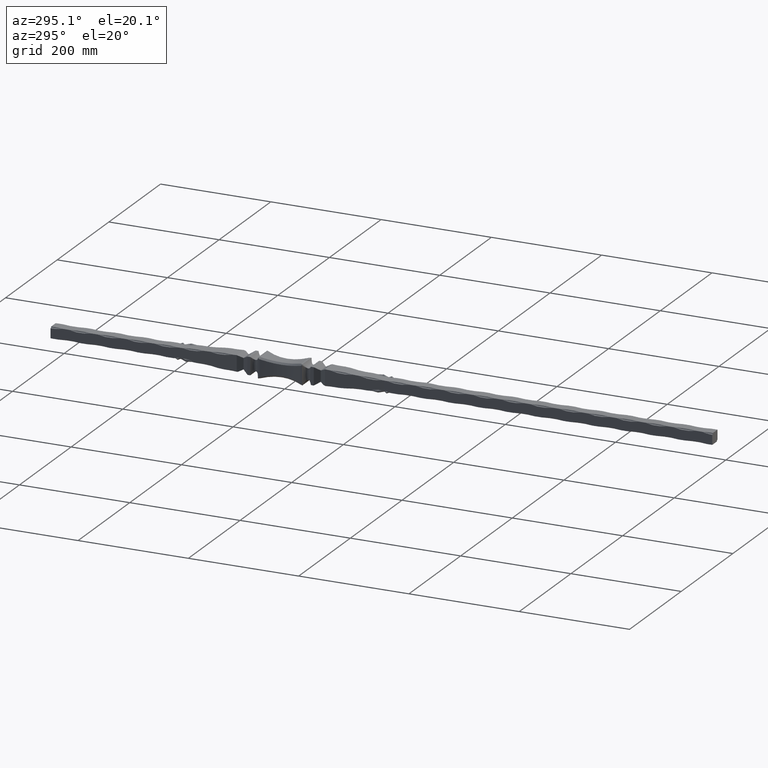
[diagram: clean part render]
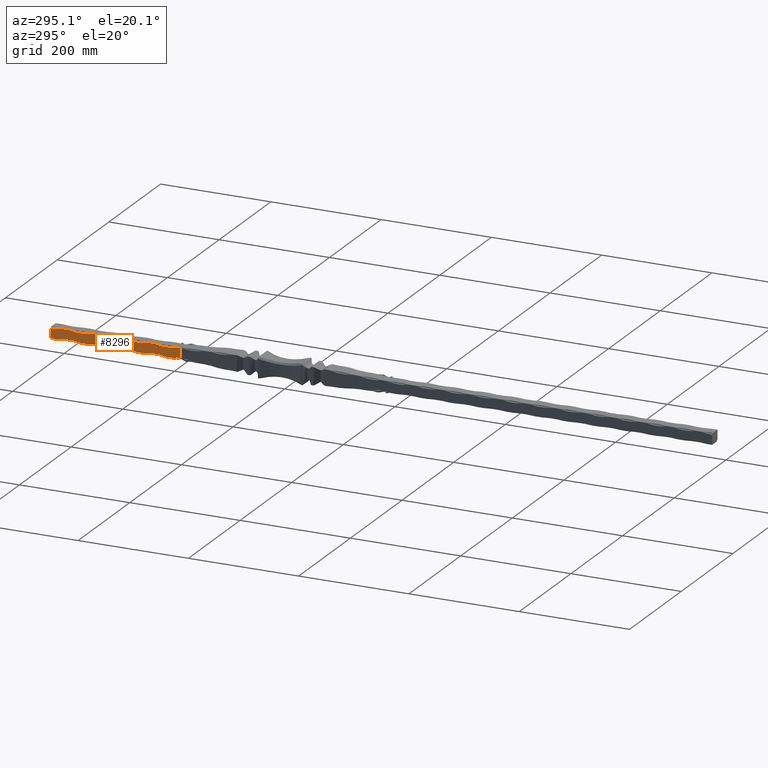
[diagram: same view with one face highlighted and labeled with its STEP entity id]
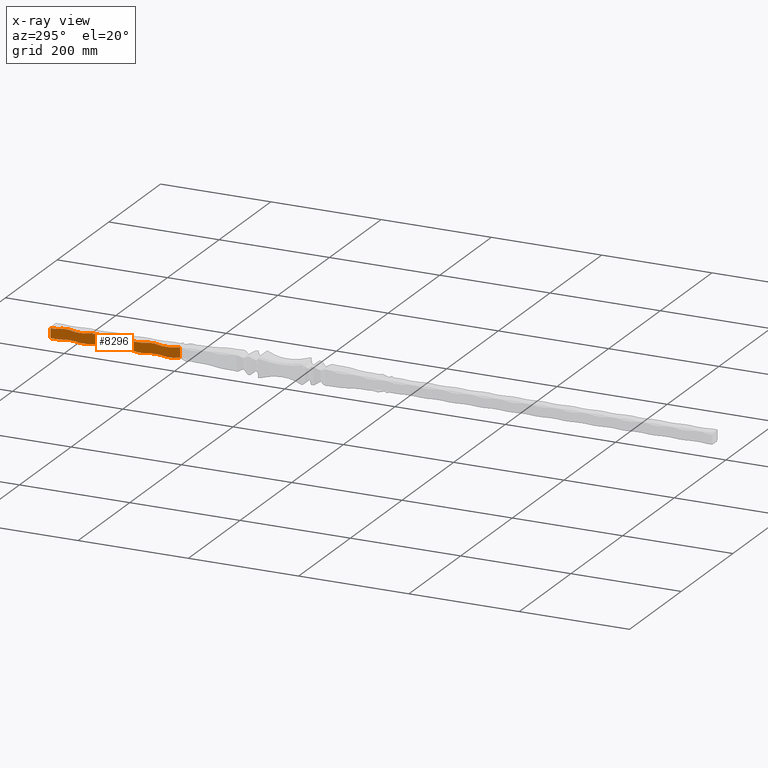
[diagram: x-ray of the same camera — body ghosted, the highlighted face saturated]
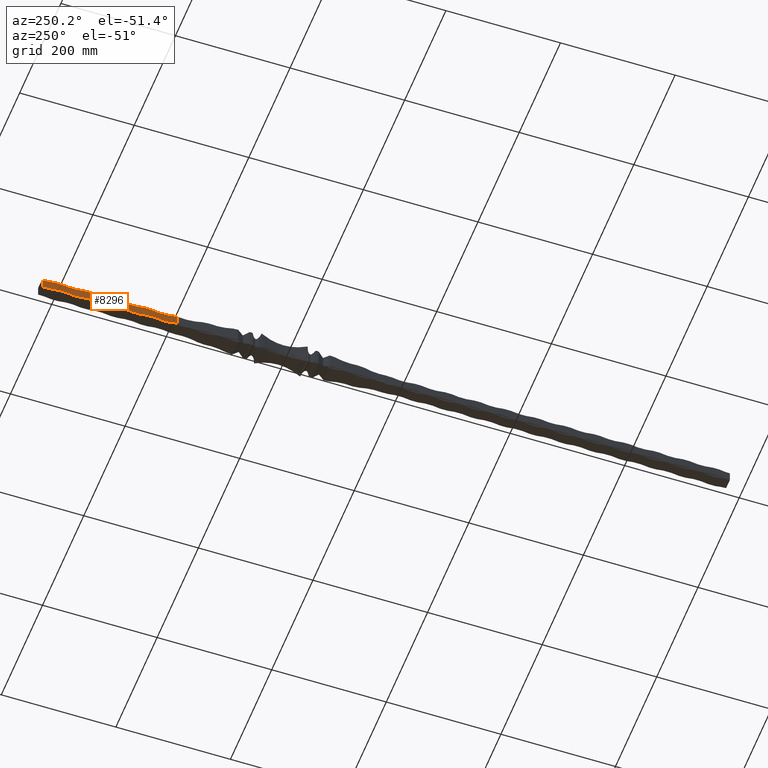
[diagram: same view with one face highlighted and labeled with its STEP entity id]
A machine part, auxiliary view. The second image highlights one B-rep face of the part: STEP entity #8296.
The next image is the same camera in x-ray: the body ghosted, the highlighted face saturated — about 0% of this face is hidden behind the body in this view.
A second angle (auxiliary view) of the same face is appended — the face is thin or edge-on in the first view.
In plain terms, the highlighted planar face has unit normal (1, 0, -0).
Its self-contained STEP definition (entity closure, byte-faithful):
#81 = CARTESIAN_POINT ( 'NONE',  ( -9.999999999999122480, 262.0000000000011937, -9.999999999999994671 ) ) ;
#163 = CARTESIAN_POINT ( 'NONE',  ( -9.999999999999031886, 229.9999999999999716, -88.75000000000046896 ) ) ;
#281 = EDGE_CURVE ( 'NONE', #15252, #7410, #5462, .T. ) ;
#362 = LINE ( 'NONE', #15082, #10746 ) ;
#367 = ORIENTED_EDGE ( 'NONE', *, *, #6669, .F. ) ;
#414 = VECTOR ( 'NONE', #4325, 1000.000000000000000 ) ;
#568 = CARTESIAN_POINT ( 'NONE',  ( -10.00000000000083666, 346.0000000000000000, 10.00000000000000355 ) ) ;
#585 = LINE ( 'NONE', #13523, #7432 ) ;
#672 = CARTESIAN_POINT ( 'NONE',  ( -9.999999999999998224, 420.0000000000000000, 7.524619114466441161 ) ) ;
#1003 = DIRECTION ( 'NONE',  ( 1.000000000000000000, 0.000000000000000000, -8.673617379884035472E-17 ) ) ;
#1005 = EDGE_CURVE ( 'NONE', #4216, #13858, #4472, .T. ) ;
#1160 = EDGE_CURVE ( 'NONE', #10032, #5842, #5446, .T. ) ;
#1235 = DIRECTION ( 'NONE',  ( -0.000000000000000000, -1.000000000000000000, -0.000000000000000000 ) ) ;
#1264 = ORIENTED_EDGE ( 'NONE', *, *, #14823, .T. ) ;
#1476 = CARTESIAN_POINT ( 'NONE',  ( -9.999999999999220179, 314.0000000000010800, -9.999999999999994671 ) ) ;
#1512 = ORIENTED_EDGE ( 'NONE', *, *, #7490, .T. ) ;
#1617 = VERTEX_POINT ( 'NONE', #7790 ) ;
#1724 = DIRECTION ( 'NONE',  ( -8.540177112501188607E-17, 0.000000000000000000, -1.000000000000000000 ) ) ;
#1809 = CIRCLE ( 'NONE', #6003, 81.25000000000014211 ) ;
#1989 = DIRECTION ( 'NONE',  ( 1.000000000000000000, 0.000000000000000000, -8.673617379884035472E-17 ) ) ;
#2013 = AXIS2_PLACEMENT_3D ( 'NONE', #13413, #8278, #14439 ) ;
#2069 = VERTEX_POINT ( 'NONE', #81 ) ;
#2109 = AXIS2_PLACEMENT_3D ( 'NONE', #11079, #2917, #9613 ) ;
#2141 = CARTESIAN_POINT ( 'NONE',  ( -9.999999999999324984, 386.0000000000000000, -88.75000000000038369 ) ) ;
#2218 = CARTESIAN_POINT ( 'NONE',  ( -10.00000000000082956, 366.0000000000000000, 88.75000000000014211 ) ) ;
#2368 = CARTESIAN_POINT ( 'NONE',  ( -10.00000000000000000, 868.2842712474619020, -9.999999999999996447 ) ) ;
#2369 = ORIENTED_EDGE ( 'NONE', *, *, #281, .T. ) ;
#2415 = EDGE_CURVE ( 'NONE', #9300, #3569, #4354, .T. ) ;
#2531 = DIRECTION ( 'NONE',  ( 1.000000000000000000, 0.000000000000000000, -8.673617379884035472E-17 ) ) ;
#2540 = DIRECTION ( 'NONE',  ( -8.673617379884035472E-17, 0.000000000000000000, -1.000000000000000000 ) ) ;
#2557 = CIRCLE ( 'NONE', #15746, 81.25000000000014211 ) ;
#2617 = DIRECTION ( 'NONE',  ( -8.540177112501187375E-17, 0.000000000000000000, -1.000000000000000000 ) ) ;
#2686 = VECTOR ( 'NONE', #12412, 1000.000000000000000 ) ;
#2853 = ORIENTED_EDGE ( 'NONE', *, *, #7447, .T. ) ;
#2880 = CIRCLE ( 'NONE', #9714, 81.25000000000014211 ) ;
#2917 = DIRECTION ( 'NONE',  ( 1.000000000000000000, 0.000000000000000000, -8.673617379884035472E-17 ) ) ;
#3130 = VERTEX_POINT ( 'NONE', #568 ) ;
#3418 = EDGE_CURVE ( 'NONE', #13858, #3825, #5620, .T. ) ;
#3423 = EDGE_CURVE ( 'NONE', #3825, #11983, #15227, .T. ) ;
#3455 = CIRCLE ( 'NONE', #4733, 81.25000000000015632 ) ;
#3470 = EDGE_CURVE ( 'NONE', #3569, #1617, #362, .T. ) ;
#3501 = CARTESIAN_POINT ( 'NONE',  ( -9.999999999999220179, 354.0000000000000568, -10.00000000000024869 ) ) ;
#3569 = VERTEX_POINT ( 'NONE', #1476 ) ;
#3599 = LINE ( 'NONE', #12306, #12841 ) ;
#3682 = CARTESIAN_POINT ( 'NONE',  ( -9.999999999999422684, 438.0000000000000000, -88.75000000000034106 ) ) ;
#3698 = EDGE_LOOP ( 'NONE', ( #9921, #4031, #9742, #5965, #13446, #13915, #9303, #12602, #11569, #7420, #367, #10049, #7312, #11643, #14819, #13842, #15376, #7081, #2853, #2369, #1512, #1264, #13984 ) ) ;
#3825 = VERTEX_POINT ( 'NONE', #11187 ) ;
#3916 = CARTESIAN_POINT ( 'NONE',  ( -10.00000000000000000, 420.0000000000000000, -9.518929705575917666 ) ) ;
#4031 = ORIENTED_EDGE ( 'NONE', *, *, #1160, .T. ) ;
#4076 = CARTESIAN_POINT ( 'NONE',  ( -9.999999999999998224, 185.0000000000000000, 10.00000000000000355 ) ) ;
#4086 = EDGE_CURVE ( 'NONE', #10032, #10499, #11324, .T. ) ;
#4216 = VERTEX_POINT ( 'NONE', #3916 ) ;
#4221 = VECTOR ( 'NONE', #11100, 1000.000000000000000 ) ;
#4325 = DIRECTION ( 'NONE',  ( -0.000000000000000000, -1.000000000000000000, -0.000000000000000000 ) ) ;
#4346 = CIRCLE ( 'NONE', #12333, 81.25000000000014211 ) ;
#4354 = CIRCLE ( 'NONE', #2109, 81.25000000000015632 ) ;
#4442 = CARTESIAN_POINT ( 'NONE',  ( -9.999999999999024780, 250.0000000000000000, -10.00000000000030731 ) ) ;
#4472 = CIRCLE ( 'NONE', #12145, 81.25000000000014211 ) ;
#4562 = DIRECTION ( 'NONE',  ( 1.000000000000000000, 0.000000000000000000, -8.673617379884035472E-17 ) ) ;
#4589 = VERTEX_POINT ( 'NONE', #13139 ) ;
#4620 = DIRECTION ( 'NONE',  ( -0.000000000000000000, -1.000000000000000000, -0.000000000000000000 ) ) ;
#4627 = DIRECTION ( 'NONE',  ( 1.000000000000000000, 0.000000000000000000, -8.673617379884035472E-17 ) ) ;
#4733 = AXIS2_PLACEMENT_3D ( 'NONE', #12161, #4627, #13421 ) ;
#4763 = DIRECTION ( 'NONE',  ( -8.540177112501188607E-17, 0.000000000000000000, -1.000000000000000000 ) ) ;
#4781 = CARTESIAN_POINT ( 'NONE',  ( -10.00000000000107114, 262.0000000000000000, 88.75000000000014211 ) ) ;
#4870 = CARTESIAN_POINT ( 'NONE',  ( -9.999999999999998224, 868.2842712474619020, 10.00000000000000355 ) ) ;
#4999 = CIRCLE ( 'NONE', #15191, 81.25000000000015632 ) ;
#5010 = EDGE_CURVE ( 'NONE', #14108, #10499, #13911, .T. ) ;
#5202 = CARTESIAN_POINT ( 'NONE',  ( -10.00000000000119726, 189.9999999999999432, 10.00000000000000355 ) ) ;
#5266 = EDGE_CURVE ( 'NONE', #3130, #14441, #13714, .T. ) ;
#5418 = CARTESIAN_POINT ( 'NONE',  ( -10.00000000000000178, 185.0000000000000568, -7.802100089008206396 ) ) ;
#5446 = CIRCLE ( 'NONE', #2013, 81.25000000000014211 ) ;
#5462 = CIRCLE ( 'NONE', #13072, 81.25000000000015632 ) ;
#5620 = LINE ( 'NONE', #9710, #8221 ) ;
#5680 = AXIS2_PLACEMENT_3D ( 'NONE', #8684, #10098, #2540 ) ;
#5842 = VERTEX_POINT ( 'NONE', #9287 ) ;
#5942 = DIRECTION ( 'NONE',  ( -8.540177112501188607E-17, 0.000000000000000000, -1.000000000000000000 ) ) ;
#5965 = ORIENTED_EDGE ( 'NONE', *, *, #7750, .T. ) ;
#5992 = CARTESIAN_POINT ( 'NONE',  ( -10.00000000000000000, 185.0000000000000000, -9.999999999999996447 ) ) ;
#6003 = AXIS2_PLACEMENT_3D ( 'NONE', #4781, #1003, #5942 ) ;
#6185 = EDGE_CURVE ( 'NONE', #16094, #14441, #2880, .T. ) ;
#6206 = DIRECTION ( 'NONE',  ( -0.000000000000000000, -1.000000000000000000, -0.000000000000000000 ) ) ;
#6224 = DIRECTION ( 'NONE',  ( -8.540177112501188607E-17, 0.000000000000000000, -1.000000000000000000 ) ) ;
#6293 = VERTEX_POINT ( 'NONE', #13601 ) ;
#6361 = DIRECTION ( 'NONE',  ( 1.000000000000000000, 0.000000000000000000, -8.673617379884035472E-17 ) ) ;
#6398 = LINE ( 'NONE', #2368, #16004 ) ;
#6669 = EDGE_CURVE ( 'NONE', #4216, #15759, #3599, .T. ) ;
#6944 = CARTESIAN_POINT ( 'NONE',  ( -9.999999999999129585, 282.0000000000000000, -88.75000000000044054 ) ) ;
#7081 = ORIENTED_EDGE ( 'NONE', *, *, #15712, .T. ) ;
#7312 = ORIENTED_EDGE ( 'NONE', *, *, #3418, .T. ) ;
#7410 = VERTEX_POINT ( 'NONE', #12192 ) ;
#7420 = ORIENTED_EDGE ( 'NONE', *, *, #10087, .T. ) ;
#7432 = VECTOR ( 'NONE', #4620, 1000.000000000000000 ) ;
#7445 = DIRECTION ( 'NONE',  ( -0.000000000000000000, -1.000000000000000000, -0.000000000000000000 ) ) ;
#7447 = EDGE_CURVE ( 'NONE', #2069, #15252, #12628, .T. ) ;
#7490 = EDGE_CURVE ( 'NONE', #7410, #14707, #11262, .T. ) ;
#7526 = VECTOR ( 'NONE', #9807, 1000.000000000000000 ) ;
#7529 = FACE_OUTER_BOUND ( 'NONE', #3698, .T. ) ;
#7750 = EDGE_CURVE ( 'NONE', #6293, #8982, #1809, .T. ) ;
#7790 = CARTESIAN_POINT ( 'NONE',  ( -9.999999999999122480, 302.0000000000000568, -10.00000000000027711 ) ) ;
#7874 = CARTESIAN_POINT ( 'NONE',  ( -9.999999999999317879, 366.0000000000009095, -9.999999999999994671 ) ) ;
#7939 = VECTOR ( 'NONE', #11284, 1000.000000000000000 ) ;
#7941 = CARTESIAN_POINT ( 'NONE',  ( -10.00000000000107825, 282.0000000000000000, 10.00000000000000888 ) ) ;
#7944 = VERTEX_POINT ( 'NONE', #12689 ) ;
#8050 = CARTESIAN_POINT ( 'NONE',  ( -9.999999999999998224, 868.2842712474619020, 10.00000000000000355 ) ) ;
#8216 = CARTESIAN_POINT ( 'NONE',  ( -9.999999999999998224, 868.2842712474619020, 10.00000000000000355 ) ) ;
#8221 = VECTOR ( 'NONE', #13574, 1000.000000000000000 ) ;
#8269 = LINE ( 'NONE', #8050, #414 ) ;
#8278 = DIRECTION ( 'NONE',  ( 1.000000000000000000, 0.000000000000000000, -8.673617379884035472E-17 ) ) ;
#8296 = ADVANCED_FACE ( 'NONE', ( #7529 ), #14944, .F. ) ;
#8536 = DIRECTION ( 'NONE',  ( 8.673617379884035472E-17, -0.000000000000000000, 1.000000000000000000 ) ) ;
#8684 = CARTESIAN_POINT ( 'NONE',  ( -10.00000000000000000, 868.2842712474619020, -9.999999999999996447 ) ) ;
#8884 = CARTESIAN_POINT ( 'NONE',  ( -10.00000000000000000, 868.2842712474619020, -9.999999999999996447 ) ) ;
#8936 = DIRECTION ( 'NONE',  ( 1.000000000000000000, 0.000000000000000000, -8.673617379884035472E-17 ) ) ;
#8982 = VERTEX_POINT ( 'NONE', #7941 ) ;
#9287 = CARTESIAN_POINT ( 'NONE',  ( -10.00000000000119726, 229.9999999999999716, 10.00000000000000888 ) ) ;
#9300 = VERTEX_POINT ( 'NONE', #3501 ) ;
#9303 = ORIENTED_EDGE ( 'NONE', *, *, #5266, .F. ) ;
#9310 = CARTESIAN_POINT ( 'NONE',  ( -10.00000000000071054, 418.0000000000000000, 88.75000000000014211 ) ) ;
#9461 = CARTESIAN_POINT ( 'NONE',  ( -9.999999999999998224, 868.2842712474619020, 10.00000000000000355 ) ) ;
#9465 = DIRECTION ( 'NONE',  ( 1.000000000000000000, 0.000000000000000000, -8.673617379884035472E-17 ) ) ;
#9473 = CARTESIAN_POINT ( 'NONE',  ( -9.999999999999415579, 418.0000000000000000, -10.00000000000018829 ) ) ;
#9613 = DIRECTION ( 'NONE',  ( -8.540177112501187375E-17, 0.000000000000000000, -1.000000000000000000 ) ) ;
#9615 = EDGE_CURVE ( 'NONE', #3130, #7944, #4346, .T. ) ;
#9710 = CARTESIAN_POINT ( 'NONE',  ( -10.00000000000000000, 868.2842712474619020, -9.999999999999996447 ) ) ;
#9714 = AXIS2_PLACEMENT_3D ( 'NONE', #12790, #6361, #14038 ) ;
#9742 = ORIENTED_EDGE ( 'NONE', *, *, #13001, .F. ) ;
#9807 = DIRECTION ( 'NONE',  ( -0.000000000000000000, -1.000000000000000000, -0.000000000000000000 ) ) ;
#9921 = ORIENTED_EDGE ( 'NONE', *, *, #4086, .F. ) ;
#10032 = VERTEX_POINT ( 'NONE', #5202 ) ;
#10049 = ORIENTED_EDGE ( 'NONE', *, *, #1005, .T. ) ;
#10087 = EDGE_CURVE ( 'NONE', #4589, #15759, #2557, .T. ) ;
#10098 = DIRECTION ( 'NONE',  ( 1.000000000000000000, 0.000000000000000000, -8.673617379884035472E-17 ) ) ;
#10499 = VERTEX_POINT ( 'NONE', #4076 ) ;
#10746 = VECTOR ( 'NONE', #6206, 1000.000000000000000 ) ;
#11079 = CARTESIAN_POINT ( 'NONE',  ( -9.999999999999227285, 334.0000000000000000, -88.75000000000041211 ) ) ;
#11100 = DIRECTION ( 'NONE',  ( -0.000000000000000000, -1.000000000000000000, -0.000000000000000000 ) ) ;
#11187 = CARTESIAN_POINT ( 'NONE',  ( -9.999999999999317879, 406.0000000000000000, -10.00000000000021672 ) ) ;
#11262 = LINE ( 'NONE', #8884, #7939 ) ;
#11284 = DIRECTION ( 'NONE',  ( -0.000000000000000000, -1.000000000000000000, -0.000000000000000000 ) ) ;
#11324 = LINE ( 'NONE', #8216, #4221 ) ;
#11569 = ORIENTED_EDGE ( 'NONE', *, *, #13460, .F. ) ;
#11643 = ORIENTED_EDGE ( 'NONE', *, *, #3423, .T. ) ;
#11983 = VERTEX_POINT ( 'NONE', #7874 ) ;
#11987 = EDGE_CURVE ( 'NONE', #16094, #8982, #8269, .T. ) ;
#12001 = DIRECTION ( 'NONE',  ( -0.000000000000000000, -1.000000000000000000, -0.000000000000000000 ) ) ;
#12123 = CARTESIAN_POINT ( 'NONE',  ( -10.00000000000095746, 334.0000000000000000, 10.00000000000000888 ) ) ;
#12145 = AXIS2_PLACEMENT_3D ( 'NONE', #3682, #2531, #6224 ) ;
#12161 = CARTESIAN_POINT ( 'NONE',  ( -9.999999999998934186, 178.0000000000000568, -88.75000000000049738 ) ) ;
#12192 = CARTESIAN_POINT ( 'NONE',  ( -9.999999999999024780, 210.0000000000012221, -9.999999999999994671 ) ) ;
#12300 = DIRECTION ( 'NONE',  ( 1.000000000000000000, 0.000000000000000000, -8.673617379884035472E-17 ) ) ;
#12306 = CARTESIAN_POINT ( 'NONE',  ( -10.00000000000000000, 420.0000000000000000, -9.999999999999996447 ) ) ;
#12333 = AXIS2_PLACEMENT_3D ( 'NONE', #2218, #12300, #4763 ) ;
#12412 = DIRECTION ( 'NONE',  ( 8.673617379884035472E-17, 0.000000000000000000, 1.000000000000000000 ) ) ;
#12602 = ORIENTED_EDGE ( 'NONE', *, *, #9615, .T. ) ;
#12628 = LINE ( 'NONE', #14762, #7526 ) ;
#12689 = CARTESIAN_POINT ( 'NONE',  ( -10.00000000000083666, 386.0000000000000000, 10.00000000000000888 ) ) ;
#12790 = CARTESIAN_POINT ( 'NONE',  ( -10.00000000000095035, 314.0000000000000000, 88.75000000000014211 ) ) ;
#12841 = VECTOR ( 'NONE', #8536, 1000.000000000000000 ) ;
#12855 = CARTESIAN_POINT ( 'NONE',  ( -10.00000000000095746, 294.0000000000000000, 10.00000000000000355 ) ) ;
#12925 = CARTESIAN_POINT ( 'NONE',  ( -9.999999999998927080, 198.0000000000000568, -10.00000000000033928 ) ) ;
#12926 = VECTOR ( 'NONE', #12001, 1000.000000000000000 ) ;
#13001 = EDGE_CURVE ( 'NONE', #6293, #5842, #585, .T. ) ;
#13072 = AXIS2_PLACEMENT_3D ( 'NONE', #163, #8936, #2617 ) ;
#13139 = CARTESIAN_POINT ( 'NONE',  ( -10.00000000000071587, 397.9999999999999432, 10.00000000000000355 ) ) ;
#13357 = DIRECTION ( 'NONE',  ( -8.540177112501187375E-17, 0.000000000000000000, -1.000000000000000000 ) ) ;
#13413 = CARTESIAN_POINT ( 'NONE',  ( -10.00000000000119016, 209.9999999999999716, 88.75000000000014211 ) ) ;
#13421 = DIRECTION ( 'NONE',  ( -8.540177112501187375E-17, 0.000000000000000000, -1.000000000000000000 ) ) ;
#13446 = ORIENTED_EDGE ( 'NONE', *, *, #11987, .F. ) ;
#13460 = EDGE_CURVE ( 'NONE', #4589, #7944, #15641, .T. ) ;
#13523 = CARTESIAN_POINT ( 'NONE',  ( -9.999999999999998224, 868.2842712474619020, 10.00000000000000355 ) ) ;
#13574 = DIRECTION ( 'NONE',  ( -0.000000000000000000, -1.000000000000000000, -0.000000000000000000 ) ) ;
#13599 = AXIS2_PLACEMENT_3D ( 'NONE', #2141, #4562, #13357 ) ;
#13601 = CARTESIAN_POINT ( 'NONE',  ( -10.00000000000107825, 242.0000000000000000, 10.00000000000000355 ) ) ;
#13714 = LINE ( 'NONE', #9461, #12926 ) ;
#13842 = ORIENTED_EDGE ( 'NONE', *, *, #2415, .T. ) ;
#13858 = VERTEX_POINT ( 'NONE', #9473 ) ;
#13911 = LINE ( 'NONE', #5992, #2686 ) ;
#13915 = ORIENTED_EDGE ( 'NONE', *, *, #6185, .T. ) ;
#13984 = ORIENTED_EDGE ( 'NONE', *, *, #5010, .T. ) ;
#14038 = DIRECTION ( 'NONE',  ( -8.540177112501188607E-17, 0.000000000000000000, -1.000000000000000000 ) ) ;
#14108 = VERTEX_POINT ( 'NONE', #5418 ) ;
#14439 = DIRECTION ( 'NONE',  ( -8.540177112501188607E-17, 0.000000000000000000, -1.000000000000000000 ) ) ;
#14441 = VERTEX_POINT ( 'NONE', #12123 ) ;
#14460 = DIRECTION ( 'NONE',  ( -8.540177112501187375E-17, 0.000000000000000000, -1.000000000000000000 ) ) ;
#14472 = VECTOR ( 'NONE', #1235, 1000.000000000000000 ) ;
#14476 = EDGE_CURVE ( 'NONE', #11983, #9300, #6398, .T. ) ;
#14707 = VERTEX_POINT ( 'NONE', #12925 ) ;
#14762 = CARTESIAN_POINT ( 'NONE',  ( -10.00000000000000000, 868.2842712474619020, -9.999999999999996447 ) ) ;
#14819 = ORIENTED_EDGE ( 'NONE', *, *, #14476, .T. ) ;
#14823 = EDGE_CURVE ( 'NONE', #14707, #14108, #3455, .T. ) ;
#14944 = PLANE ( 'NONE',  #5680 ) ;
#15082 = CARTESIAN_POINT ( 'NONE',  ( -10.00000000000000000, 868.2842712474619020, -9.999999999999996447 ) ) ;
#15191 = AXIS2_PLACEMENT_3D ( 'NONE', #6944, #1989, #14460 ) ;
#15227 = CIRCLE ( 'NONE', #13599, 81.25000000000015632 ) ;
#15252 = VERTEX_POINT ( 'NONE', #4442 ) ;
#15376 = ORIENTED_EDGE ( 'NONE', *, *, #3470, .T. ) ;
#15641 = LINE ( 'NONE', #4870, #14472 ) ;
#15712 = EDGE_CURVE ( 'NONE', #1617, #2069, #4999, .T. ) ;
#15746 = AXIS2_PLACEMENT_3D ( 'NONE', #9310, #9465, #1724 ) ;
#15759 = VERTEX_POINT ( 'NONE', #672 ) ;
#16004 = VECTOR ( 'NONE', #7445, 1000.000000000000000 ) ;
#16094 = VERTEX_POINT ( 'NONE', #12855 ) ;